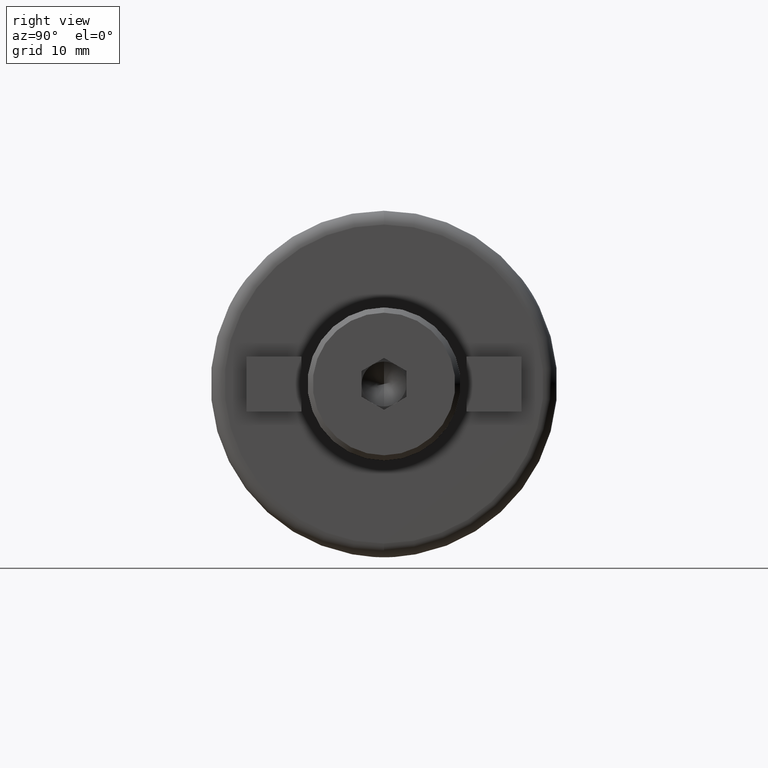
[diagram: clean part render]
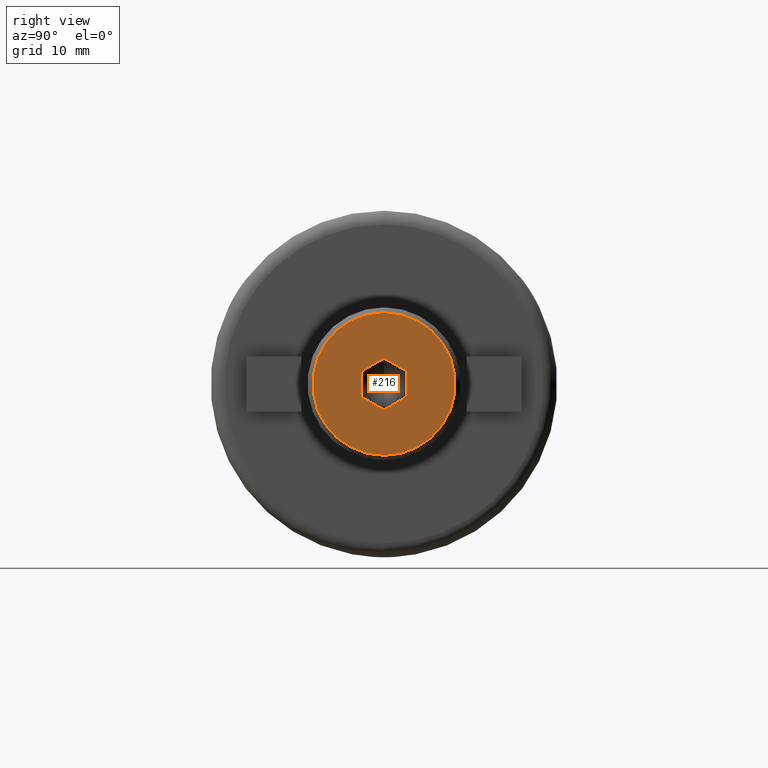
[diagram: same view with one face highlighted and labeled with its STEP entity id]
A machine part, right view. The second image highlights one B-rep face of the part: STEP entity #216.
In plain terms, the highlighted planar face has unit normal (1, 0, 0).
Its self-contained STEP definition (entity closure, byte-faithful):
#160 = LINE ( 'NONE', #3101, #7115 ) ;
#216 = ADVANCED_FACE ( 'NONE', ( #4639, #8925 ), #3401, .T. ) ;
#307 = DIRECTION ( 'NONE',  ( 0.0000000000000000000, 8.326672684688665200E-016, 1.000000000000000000 ) ) ;
#326 = ORIENTED_EDGE ( 'NONE', *, *, #8185, .F. ) ;
#416 = EDGE_CURVE ( 'NONE', #4478, #8240, #4066, .T. ) ;
#427 = ORIENTED_EDGE ( 'NONE', *, *, #5975, .F. ) ;
#575 = ORIENTED_EDGE ( 'NONE', *, *, #3309, .F. ) ;
#659 = VERTEX_POINT ( 'NONE', #1389 ) ;
#688 = AXIS2_PLACEMENT_3D ( 'NONE', #7128, #4105, #8599 ) ;
#968 = DIRECTION ( 'NONE',  ( 0.0000000000000000000, -9.992007221626401000E-016, -1.000000000000000000 ) ) ;
#1007 = CARTESIAN_POINT ( 'NONE',  ( 0.0000000000000000000, -4.553649124439118600E-015, -3.739497693541208500 ) ) ;
#1014 = ORIENTED_EDGE ( 'NONE', *, *, #6579, .F. ) ;
#1024 = CARTESIAN_POINT ( 'NONE',  ( 0.0000000000000000000, -3.238499999999997500, 1.869748846770603400 ) ) ;
#1050 = LINE ( 'NONE', #4845, #6712 ) ;
#1272 = VERTEX_POINT ( 'NONE', #9204 ) ;
#1389 = CARTESIAN_POINT ( 'NONE',  ( 0.0000000000000000000, -3.238500000000002400, -1.869748846770606500 ) ) ;
#1390 = LINE ( 'NONE', #6857, #5340 ) ;
#1579 = CARTESIAN_POINT ( 'NONE',  ( 0.0000000000000000000, 3.238499999999999300, -1.869748846770602500 ) ) ;
#1627 = CARTESIAN_POINT ( 'NONE',  ( 0.0000000000000000000, 1.018934762535627500E-014, 10.28699999999999900 ) ) ;
#1640 = LINE ( 'NONE', #3175, #5344 ) ;
#1650 = ORIENTED_EDGE ( 'NONE', *, *, #9007, .F. ) ;
#1896 = VERTEX_POINT ( 'NONE', #1627 ) ;
#1961 = ORIENTED_EDGE ( 'NONE', *, *, #6365, .T. ) ;
#2091 = VECTOR ( 'NONE', #4137, 1000.000000000000000 ) ;
#2328 = DIRECTION ( 'NONE',  ( 0.0000000000000000000, 8.326672684688665200E-016, 1.000000000000000000 ) ) ;
#2771 = VERTEX_POINT ( 'NONE', #3665 ) ;
#2921 = ORIENTED_EDGE ( 'NONE', *, *, #8341, .T. ) ;
#3017 = VECTOR ( 'NONE', #6964, 1000.000000000000100 ) ;
#3056 = CARTESIAN_POINT ( 'NONE',  ( 0.0000000000000000000, 0.0000000000000000000, 0.0000000000000000000 ) ) ;
#3101 = CARTESIAN_POINT ( 'NONE',  ( 0.0000000000000000000, 5.204170427930421300E-015, 3.739497693541208500 ) ) ;
#3175 = CARTESIAN_POINT ( 'NONE',  ( 0.0000000000000000000, -3.238500000000002400, -1.869748846770606500 ) ) ;
#3185 = AXIS2_PLACEMENT_3D ( 'NONE', #4736, #8439, #307 ) ;
#3309 = EDGE_CURVE ( 'NONE', #1272, #4478, #1390, .T. ) ;
#3401 = PLANE ( 'NONE',  #688 ) ;
#3611 = EDGE_LOOP ( 'NONE', ( #2921, #1961 ) ) ;
#3665 = CARTESIAN_POINT ( 'NONE',  ( 0.0000000000000000000, -8.882894420025876500E-015, -10.28699999999999900 ) ) ;
#3735 = CARTESIAN_POINT ( 'NONE',  ( 0.0000000000000000000, -4.553649124439118600E-015, -3.739497693541208500 ) ) ;
#4066 = LINE ( 'NONE', #8565, #2091 ) ;
#4105 = DIRECTION ( 'NONE',  ( -1.000000000000000000, 0.0000000000000000000, -0.0000000000000000000 ) ) ;
#4137 = DIRECTION ( 'NONE',  ( 0.0000000000000000000, -0.8660254037844386000, -0.5000000000000001100 ) ) ;
#4319 = CIRCLE ( 'NONE', #3185, 10.28700000000001100 ) ;
#4478 = VERTEX_POINT ( 'NONE', #1579 ) ;
#4639 = FACE_BOUND ( 'NONE', #6665, .T. ) ;
#4673 = CARTESIAN_POINT ( 'NONE',  ( 0.0000000000000000000, 5.204170427930421300E-015, 3.739497693541208500 ) ) ;
#4736 = CARTESIAN_POINT ( 'NONE',  ( 0.0000000000000000000, 0.0000000000000000000, 0.0000000000000000000 ) ) ;
#4845 = CARTESIAN_POINT ( 'NONE',  ( 0.0000000000000000000, -3.238499999999997500, 1.869748846770603400 ) ) ;
#5283 = ORIENTED_EDGE ( 'NONE', *, *, #416, .F. ) ;
#5340 = VECTOR ( 'NONE', #968, 1000.000000000000000 ) ;
#5344 = VECTOR ( 'NONE', #6190, 1000.000000000000000 ) ;
#5535 = VERTEX_POINT ( 'NONE', #1024 ) ;
#5693 = DIRECTION ( 'NONE',  ( -0.0000000000000000000, 0.8660254037844384900, 0.5000000000000002200 ) ) ;
#5917 = LINE ( 'NONE', #1007, #3017 ) ;
#5975 = EDGE_CURVE ( 'NONE', #659, #5535, #1640, .T. ) ;
#5995 = VERTEX_POINT ( 'NONE', #4673 ) ;
#6190 = DIRECTION ( 'NONE',  ( -0.0000000000000000000, 1.054711873393897700E-015, 1.000000000000000000 ) ) ;
#6365 = EDGE_CURVE ( 'NONE', #1896, #2771, #6587, .T. ) ;
#6579 = EDGE_CURVE ( 'NONE', #5535, #5995, #1050, .T. ) ;
#6587 = CIRCLE ( 'NONE', #8737, 10.28700000000001100 ) ;
#6665 = EDGE_LOOP ( 'NONE', ( #1650, #5283, #575, #326, #1014, #427 ) ) ;
#6712 = VECTOR ( 'NONE', #5693, 1000.000000000000000 ) ;
#6823 = DIRECTION ( 'NONE',  ( -1.000000000000000000, 0.0000000000000000000, 0.0000000000000000000 ) ) ;
#6857 = CARTESIAN_POINT ( 'NONE',  ( 0.0000000000000000000, 3.238500000000001900, 1.869748846770605600 ) ) ;
#6964 = DIRECTION ( 'NONE',  ( 0.0000000000000000000, -0.8660254037844384900, 0.5000000000000002200 ) ) ;
#7115 = VECTOR ( 'NONE', #7411, 1000.000000000000000 ) ;
#7128 = CARTESIAN_POINT ( 'NONE',  ( 0.0000000000000000000, 0.0000000000000000000, 0.0000000000000000000 ) ) ;
#7411 = DIRECTION ( 'NONE',  ( 0.0000000000000000000, 0.8660254037844383700, -0.5000000000000004400 ) ) ;
#8185 = EDGE_CURVE ( 'NONE', #5995, #1272, #160, .T. ) ;
#8240 = VERTEX_POINT ( 'NONE', #3735 ) ;
#8341 = EDGE_CURVE ( 'NONE', #2771, #1896, #4319, .T. ) ;
#8439 = DIRECTION ( 'NONE',  ( -1.000000000000000000, 0.0000000000000000000, 0.0000000000000000000 ) ) ;
#8565 = CARTESIAN_POINT ( 'NONE',  ( 0.0000000000000000000, 3.238499999999999300, -1.869748846770602500 ) ) ;
#8599 = DIRECTION ( 'NONE',  ( -0.0000000000000000000, 8.326672684688664200E-016, 1.000000000000000000 ) ) ;
#8737 = AXIS2_PLACEMENT_3D ( 'NONE', #3056, #6823, #2328 ) ;
#8925 = FACE_OUTER_BOUND ( 'NONE', #3611, .T. ) ;
#9007 = EDGE_CURVE ( 'NONE', #8240, #659, #5917, .T. ) ;
#9204 = CARTESIAN_POINT ( 'NONE',  ( 0.0000000000000000000, 3.238500000000001900, 1.869748846770605600 ) ) ;